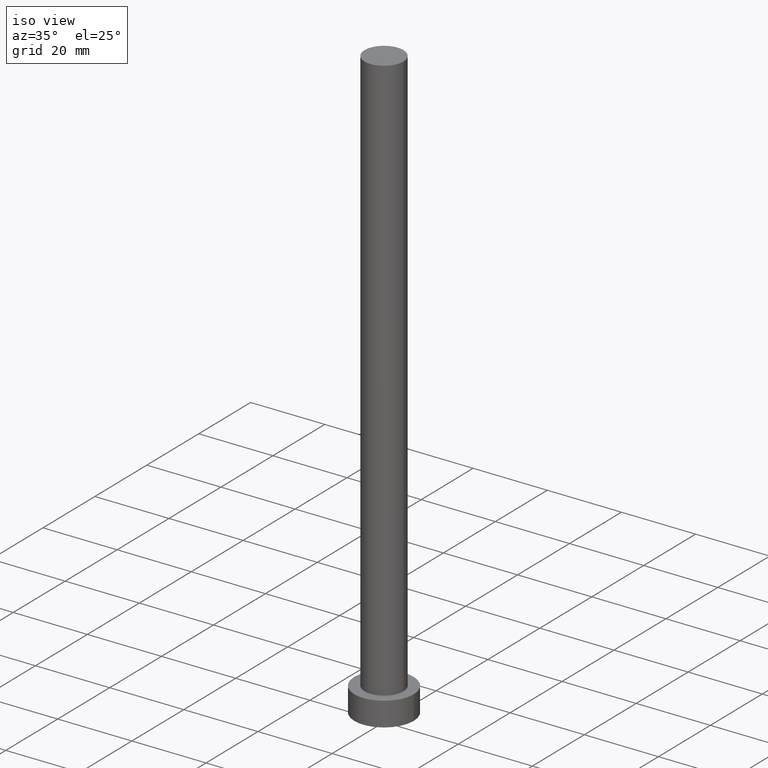
[diagram: clean part render]
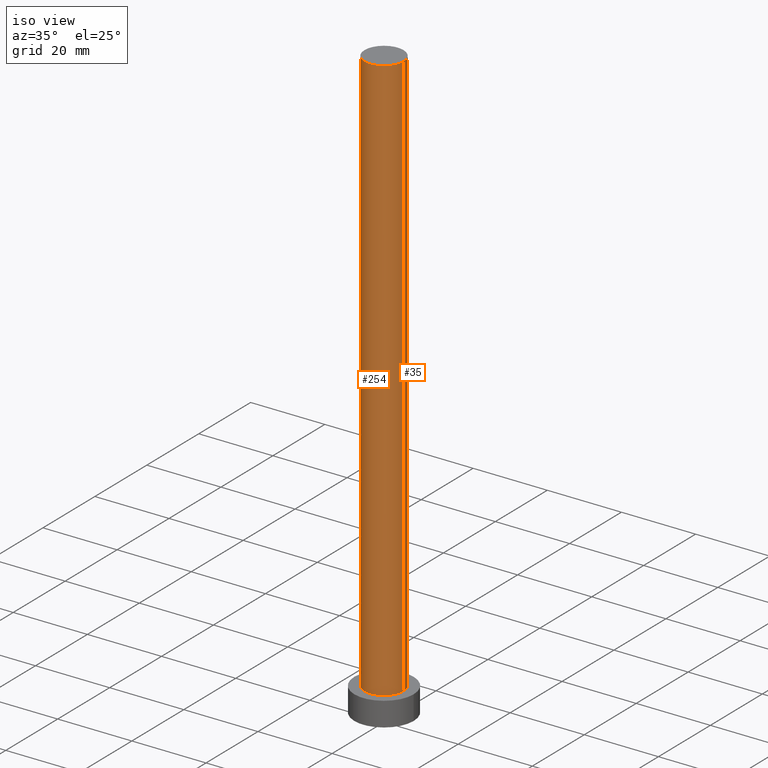
[diagram: same view with one multi-face feature highlighted, each face labeled with its STEP entity id]
A machine part, iso view. The highlighted faces form ONE feature: a constant-radius fillet chain: 2 tangent blend faces with common blend radius 5.25 mm. The faces share edges in the B-rep.
Their STEP definitions:
[1] entity #254 (Cylinder):
#12 = VERTEX_POINT ( 'NONE', #17 ) ;
#13 = DIRECTION ( 'NONE',  ( 0.000000000000000000, 0.000000000000000000, 1.000000000000000000 ) ) ;
#17 = CARTESIAN_POINT ( 'NONE',  ( 5.250000000000000888, 6.429395695523605139E-16, 6.500000000000000000 ) ) ;
#18 = CARTESIAN_POINT ( 'NONE',  ( 0.000000000000000000, 0.000000000000000000, 160.0000000000000000 ) ) ;
#19 = VERTEX_POINT ( 'NONE', #120 ) ;
#28 = ORIENTED_EDGE ( 'NONE', *, *, #211, .T. ) ;
#43 = CARTESIAN_POINT ( 'NONE',  ( -5.250000000000000888, 0.000000000000000000, 6.500000000000000000 ) ) ;
#45 = DIRECTION ( 'NONE',  ( 0.000000000000000000, 0.000000000000000000, 1.000000000000000000 ) ) ;
#47 = DIRECTION ( 'NONE',  ( 1.000000000000000000, 0.000000000000000000, 0.000000000000000000 ) ) ;
#56 = ORIENTED_EDGE ( 'NONE', *, *, #151, .T. ) ;
#84 = CARTESIAN_POINT ( 'NONE',  ( 5.250000000000000888, 6.429395695523605139E-16, 160.0000000000000000 ) ) ;
#85 = EDGE_CURVE ( 'NONE', #19, #12, #101, .T. ) ;
#93 = AXIS2_PLACEMENT_3D ( 'NONE', #241, #13, #47 ) ;
#95 = VERTEX_POINT ( 'NONE', #159 ) ;
#96 = DIRECTION ( 'NONE',  ( -0.000000000000000000, -0.000000000000000000, -1.000000000000000000 ) ) ;
#101 = LINE ( 'NONE', #84, #169 ) ;
#107 = CIRCLE ( 'NONE', #194, 5.250000000000000888 ) ;
#117 = CYLINDRICAL_SURFACE ( 'NONE', #139, 5.250000000000000888 ) ;
#120 = CARTESIAN_POINT ( 'NONE',  ( 5.250000000000000888, 6.429395695523605139E-16, 160.0000000000000000 ) ) ;
#123 = CARTESIAN_POINT ( 'NONE',  ( -5.250000000000000888, 0.000000000000000000, 160.0000000000000000 ) ) ;
#127 = DIRECTION ( 'NONE',  ( 1.000000000000000000, 0.000000000000000000, 0.000000000000000000 ) ) ;
#130 = CARTESIAN_POINT ( 'NONE',  ( 0.000000000000000000, 0.000000000000000000, 6.500000000000000000 ) ) ;
#139 = AXIS2_PLACEMENT_3D ( 'NONE', #18, #96, #174 ) ;
#144 = VERTEX_POINT ( 'NONE', #43 ) ;
#149 = EDGE_LOOP ( 'NONE', ( #207, #171, #56, #28 ) ) ;
#151 = EDGE_CURVE ( 'NONE', #95, #144, #214, .T. ) ;
#155 = DIRECTION ( 'NONE',  ( -0.000000000000000000, -0.000000000000000000, -1.000000000000000000 ) ) ;
#159 = CARTESIAN_POINT ( 'NONE',  ( -5.250000000000000888, 0.000000000000000000, 160.0000000000000000 ) ) ;
#169 = VECTOR ( 'NONE', #176, 1000.000000000000000 ) ;
#171 = ORIENTED_EDGE ( 'NONE', *, *, #184, .F. ) ;
#174 = DIRECTION ( 'NONE',  ( -1.000000000000000000, 0.000000000000000000, 0.000000000000000000 ) ) ;
#176 = DIRECTION ( 'NONE',  ( -0.000000000000000000, -0.000000000000000000, -1.000000000000000000 ) ) ;
#184 = EDGE_CURVE ( 'NONE', #95, #19, #228, .T. ) ;
#188 = VECTOR ( 'NONE', #155, 1000.000000000000000 ) ;
#193 = FACE_OUTER_BOUND ( 'NONE', #149, .T. ) ;
#194 = AXIS2_PLACEMENT_3D ( 'NONE', #130, #45, #127 ) ;
#207 = ORIENTED_EDGE ( 'NONE', *, *, #85, .F. ) ;
#211 = EDGE_CURVE ( 'NONE', #144, #12, #107, .T. ) ;
#214 = LINE ( 'NONE', #123, #188 ) ;
#228 = CIRCLE ( 'NONE', #93, 5.250000000000000888 ) ;
#241 = CARTESIAN_POINT ( 'NONE',  ( 0.000000000000000000, 0.000000000000000000, 160.0000000000000000 ) ) ;
#254 = ADVANCED_FACE ( 'NONE', ( #193 ), #117, .T. ) ;
[2] entity #35 (Cylinder):
#2 = CARTESIAN_POINT ( 'NONE',  ( 0.000000000000000000, 0.000000000000000000, 160.0000000000000000 ) ) ;
#6 = DIRECTION ( 'NONE',  ( 1.000000000000000000, 0.000000000000000000, 0.000000000000000000 ) ) ;
#12 = VERTEX_POINT ( 'NONE', #17 ) ;
#17 = CARTESIAN_POINT ( 'NONE',  ( 5.250000000000000888, 6.429395695523605139E-16, 6.500000000000000000 ) ) ;
#19 = VERTEX_POINT ( 'NONE', #120 ) ;
#20 = EDGE_CURVE ( 'NONE', #12, #144, #109, .T. ) ;
#24 = FACE_OUTER_BOUND ( 'NONE', #208, .T. ) ;
#26 = AXIS2_PLACEMENT_3D ( 'NONE', #201, #27, #104 ) ;
#27 = DIRECTION ( 'NONE',  ( 0.000000000000000000, 0.000000000000000000, 1.000000000000000000 ) ) ;
#29 = AXIS2_PLACEMENT_3D ( 'NONE', #2, #99, #39 ) ;
#35 = ADVANCED_FACE ( 'NONE', ( #24 ), #179, .T. ) ;
#39 = DIRECTION ( 'NONE',  ( -1.000000000000000000, 0.000000000000000000, 0.000000000000000000 ) ) ;
#43 = CARTESIAN_POINT ( 'NONE',  ( -5.250000000000000888, 0.000000000000000000, 6.500000000000000000 ) ) ;
#50 = AXIS2_PLACEMENT_3D ( 'NONE', #80, #136, #6 ) ;
#77 = ORIENTED_EDGE ( 'NONE', *, *, #151, .F. ) ;
#80 = CARTESIAN_POINT ( 'NONE',  ( 0.000000000000000000, 0.000000000000000000, 6.500000000000000000 ) ) ;
#84 = CARTESIAN_POINT ( 'NONE',  ( 5.250000000000000888, 6.429395695523605139E-16, 160.0000000000000000 ) ) ;
#85 = EDGE_CURVE ( 'NONE', #19, #12, #101, .T. ) ;
#95 = VERTEX_POINT ( 'NONE', #159 ) ;
#99 = DIRECTION ( 'NONE',  ( -0.000000000000000000, -0.000000000000000000, -1.000000000000000000 ) ) ;
#101 = LINE ( 'NONE', #84, #169 ) ;
#104 = DIRECTION ( 'NONE',  ( 1.000000000000000000, 0.000000000000000000, 0.000000000000000000 ) ) ;
#109 = CIRCLE ( 'NONE', #50, 5.250000000000000888 ) ;
#120 = CARTESIAN_POINT ( 'NONE',  ( 5.250000000000000888, 6.429395695523605139E-16, 160.0000000000000000 ) ) ;
#123 = CARTESIAN_POINT ( 'NONE',  ( -5.250000000000000888, 0.000000000000000000, 160.0000000000000000 ) ) ;
#132 = ORIENTED_EDGE ( 'NONE', *, *, #220, .F. ) ;
#136 = DIRECTION ( 'NONE',  ( 0.000000000000000000, 0.000000000000000000, 1.000000000000000000 ) ) ;
#143 = ORIENTED_EDGE ( 'NONE', *, *, #85, .T. ) ;
#144 = VERTEX_POINT ( 'NONE', #43 ) ;
#151 = EDGE_CURVE ( 'NONE', #95, #144, #214, .T. ) ;
#155 = DIRECTION ( 'NONE',  ( -0.000000000000000000, -0.000000000000000000, -1.000000000000000000 ) ) ;
#159 = CARTESIAN_POINT ( 'NONE',  ( -5.250000000000000888, 0.000000000000000000, 160.0000000000000000 ) ) ;
#169 = VECTOR ( 'NONE', #176, 1000.000000000000000 ) ;
#176 = DIRECTION ( 'NONE',  ( -0.000000000000000000, -0.000000000000000000, -1.000000000000000000 ) ) ;
#179 = CYLINDRICAL_SURFACE ( 'NONE', #29, 5.250000000000000888 ) ;
#188 = VECTOR ( 'NONE', #155, 1000.000000000000000 ) ;
#192 = ORIENTED_EDGE ( 'NONE', *, *, #20, .T. ) ;
#201 = CARTESIAN_POINT ( 'NONE',  ( 0.000000000000000000, 0.000000000000000000, 160.0000000000000000 ) ) ;
#208 = EDGE_LOOP ( 'NONE', ( #132, #143, #192, #77 ) ) ;
#214 = LINE ( 'NONE', #123, #188 ) ;
#216 = CIRCLE ( 'NONE', #26, 5.250000000000000888 ) ;
#220 = EDGE_CURVE ( 'NONE', #19, #95, #216, .T. ) ;